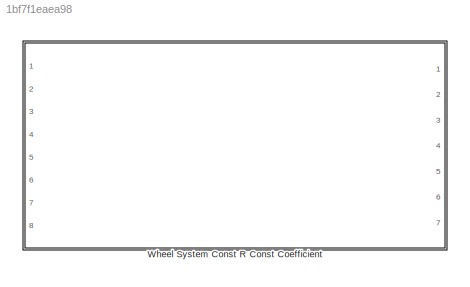
MODEL slx_1bf7f1eaea98
KIND library
CONFIG AbsTol = auto
CONFIG EnableMultiTasking = off
CONFIG FixedStep = auto
CONFIG MaxStep = auto
CONFIG MinStep = auto
CONFIG RelTol = 1e-3
CONFIG SampleTimeConstraint = Unconstrained
CONFIG Solver = VariableStepAuto
CONFIG SolverName = VariableStepAuto
CONFIG StartTime = 0.0
CONFIG StopTime = 10.0
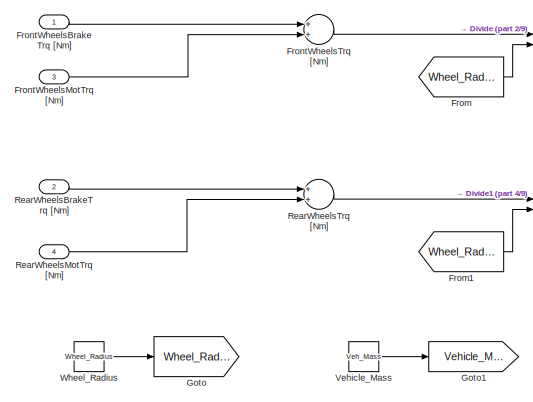
[diagram: Wheel System Const R Const Coefficient - part 1/9, top left region]
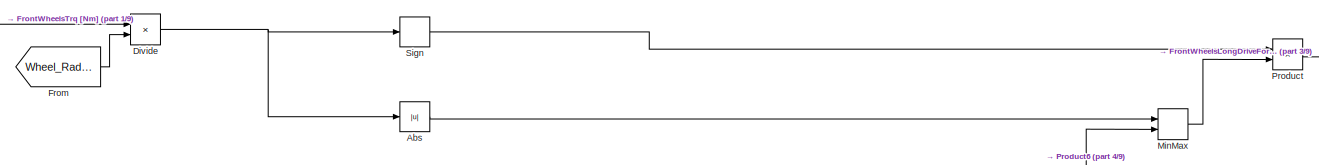
[diagram: Wheel System Const R Const Coefficient - part 2/9, top center region]
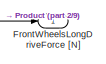
[diagram: Wheel System Const R Const Coefficient - part 3/9, top right region]
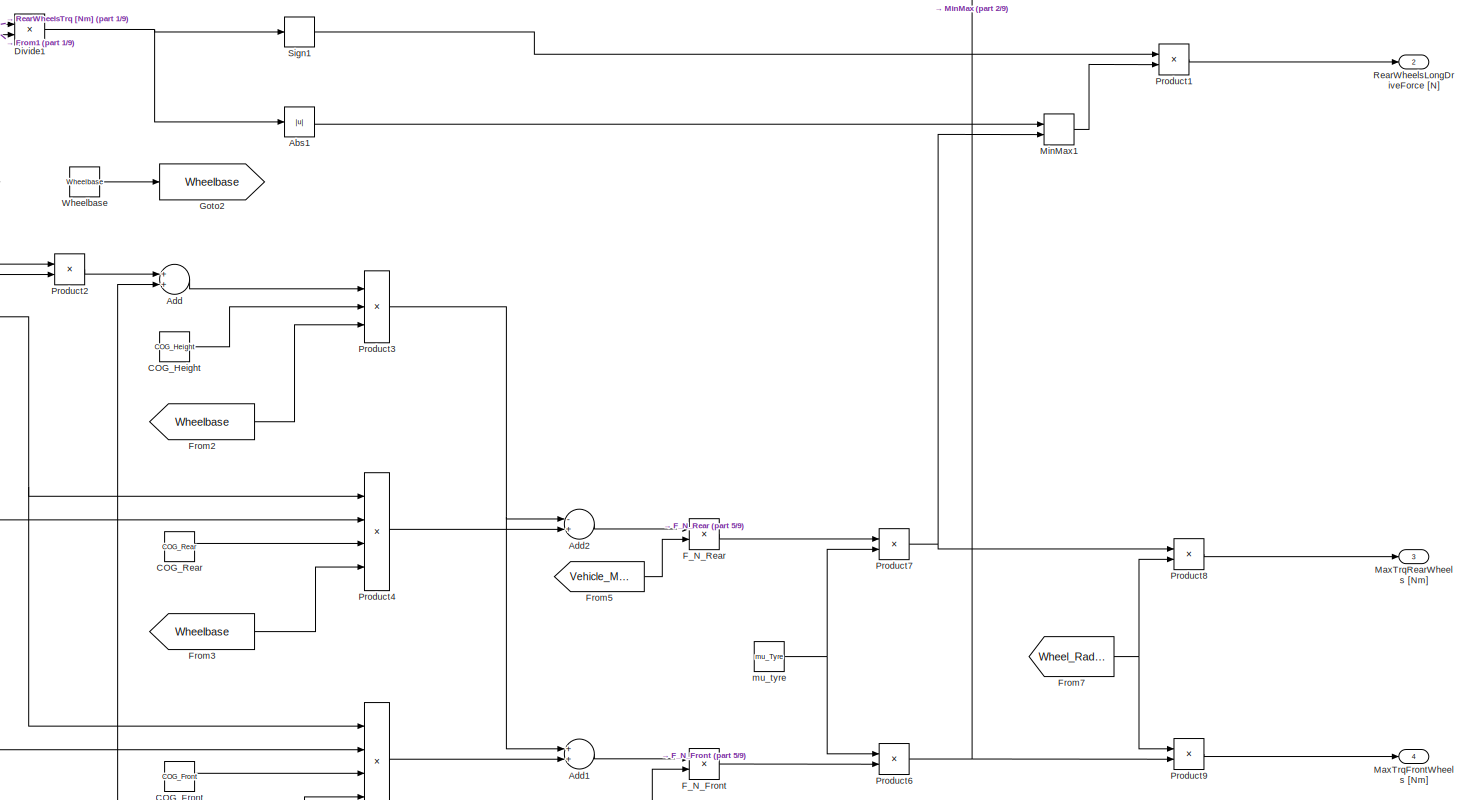
[diagram: Wheel System Const R Const Coefficient - part 4/9, full width, middle band]
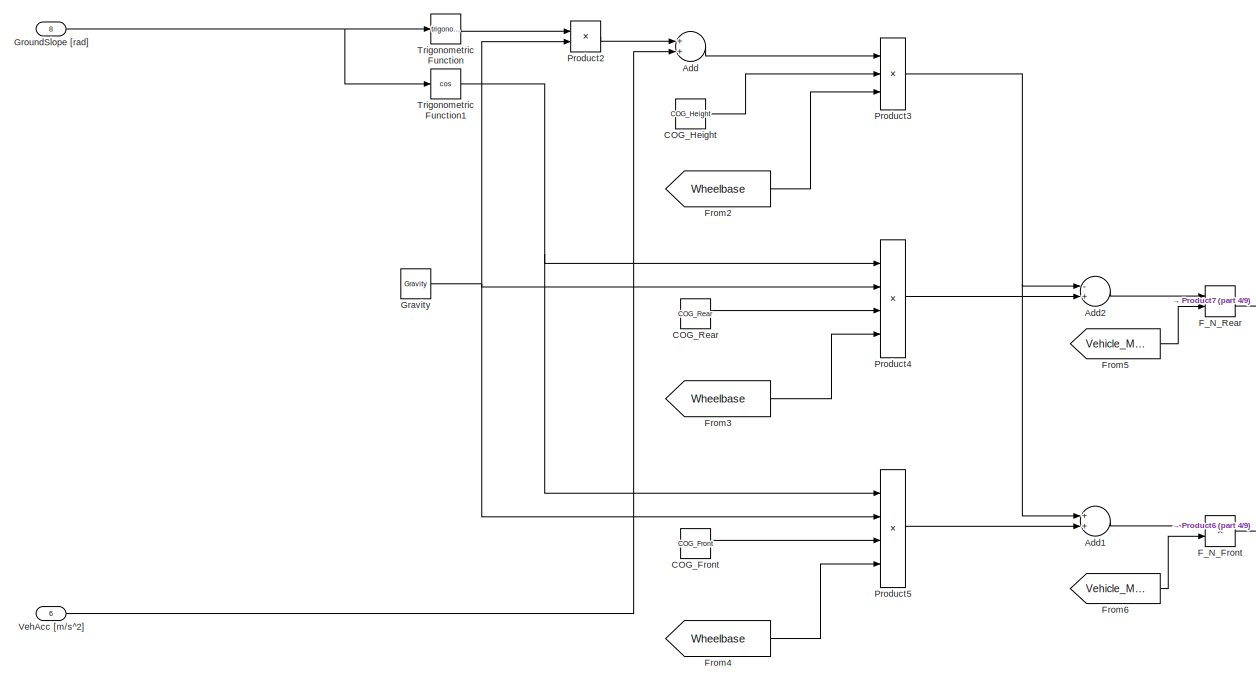
[diagram: Wheel System Const R Const Coefficient - part 5/9, middle left region]
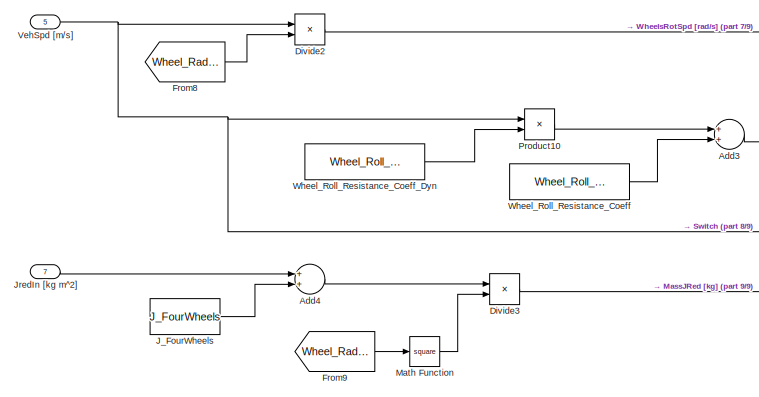
[diagram: Wheel System Const R Const Coefficient - part 6/9, bottom left region]
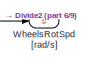
[diagram: Wheel System Const R Const Coefficient - part 7/9, bottom right region]
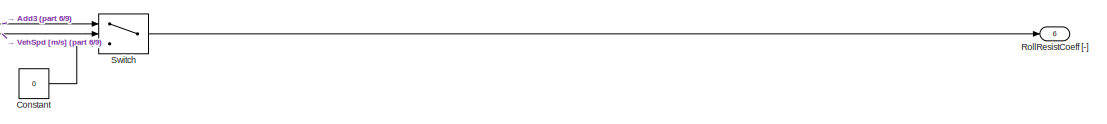
[diagram: Wheel System Const R Const Coefficient - part 8/9, bottom right region]
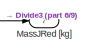
[diagram: Wheel System Const R Const Coefficient - part 9/9, bottom right region]
BLOCK [SubSystem] Wheel System Const R Const Coefficient
  Ports = [8, 7]
  RequestExecContextInheritance = off
BLOCK [Abs] Wheel System Const R Const Coefficient/Abs
  SaturateOnIntegerOverflow = off
BLOCK [Abs] Wheel System Const R Const Coefficient/Abs1
  SaturateOnIntegerOverflow = off
BLOCK [Sum] Wheel System Const R Const Coefficient/Add
  InputSameDT = off
  OutDataTypeStr = Inherit: Inherit via internal rule
  Ports = [2, 1]
  SaturateOnIntegerOverflow = off
BLOCK [Sum] Wheel System Const R Const Coefficient/Add1
  InputSameDT = off
  OutDataTypeStr = Inherit: Inherit via internal rule
  Ports = [2, 1]
  SaturateOnIntegerOverflow = off
BLOCK [Sum] Wheel System Const R Const Coefficient/Add2
  InputSameDT = off
  Inputs = -+
  OutDataTypeStr = Inherit: Inherit via internal rule
  Ports = [2, 1]
  SaturateOnIntegerOverflow = off
BLOCK [Sum] Wheel System Const R Const Coefficient/Add3
  InputSameDT = off
  OutDataTypeStr = Inherit: Inherit via internal rule
  Ports = [2, 1]
  SaturateOnIntegerOverflow = off
BLOCK [Sum] Wheel System Const R Const Coefficient/Add4
  InputSameDT = off
  OutDataTypeStr = Inherit: Inherit via internal rule
  Ports = [2, 1]
  SaturateOnIntegerOverflow = off
BLOCK [Constant] Wheel System Const R Const Coefficient/COG_Front
  Value = COG_Front
BLOCK [Constant] Wheel System Const R Const Coefficient/COG_Height
  Value = COG_Height
BLOCK [Constant] Wheel System Const R Const Coefficient/COG_Rear
  Value = COG_Rear
BLOCK [Constant] Wheel System Const R Const Coefficient/Constant
  Value = 0
BLOCK [Product] Wheel System Const R Const Coefficient/Divide
  InputSameDT = off
  Inputs = */
  OutDataTypeStr = Inherit: Inherit via internal rule
  Ports = [2, 1]
  RndMeth = Floor
  SaturateOnIntegerOverflow = off
BLOCK [Product] Wheel System Const R Const Coefficient/Divide1
  InputSameDT = off
  Inputs = */
  OutDataTypeStr = Inherit: Inherit via internal rule
  Ports = [2, 1]
  RndMeth = Floor
  SaturateOnIntegerOverflow = off
BLOCK [Product] Wheel System Const R Const Coefficient/Divide2
  InputSameDT = off
  Inputs = */
  OutDataTypeStr = Inherit: Inherit via internal rule
  Ports = [2, 1]
  RndMeth = Floor
  SaturateOnIntegerOverflow = off
BLOCK [Product] Wheel System Const R Const Coefficient/Divide3
  InputSameDT = off
  Inputs = */
  OutDataTypeStr = Inherit: Inherit via internal rule
  Ports = [2, 1]
  RndMeth = Floor
  SaturateOnIntegerOverflow = off
BLOCK [Product] Wheel System Const R Const Coefficient/F_N_Front
  InputSameDT = off
  OutDataTypeStr = Inherit: Inherit via internal rule
  Ports = [2, 1]
  RndMeth = Floor
  SaturateOnIntegerOverflow = off
BLOCK [Product] Wheel System Const R Const Coefficient/F_N_Rear
  InputSameDT = off
  OutDataTypeStr = Inherit: Inherit via internal rule
  Ports = [2, 1]
  RndMeth = Floor
  SaturateOnIntegerOverflow = off
BLOCK [From] Wheel System Const R Const Coefficient/From
  GotoTag = Wheel_Radius
BLOCK [From] Wheel System Const R Const Coefficient/From1
  GotoTag = Wheel_Radius
BLOCK [From] Wheel System Const R Const Coefficient/From2
  GotoTag = Wheelbase
BLOCK [From] Wheel System Const R Const Coefficient/From3
  GotoTag = Wheelbase
BLOCK [From] Wheel System Const R Const Coefficient/From4
  GotoTag = Wheelbase
BLOCK [From] Wheel System Const R Const Coefficient/From5
  GotoTag = Vehicle_Mass
BLOCK [From] Wheel System Const R Const Coefficient/From6
  GotoTag = Vehicle_Mass
BLOCK [From] Wheel System Const R Const Coefficient/From7
  GotoTag = Wheel_Radius
BLOCK [From] Wheel System Const R Const Coefficient/From8
  GotoTag = Wheel_Radius
BLOCK [From] Wheel System Const R Const Coefficient/From9
  GotoTag = Wheel_Radius
BLOCK [Inport] Wheel System Const R Const Coefficient/FrontWheelsBrakeTrq [Nm]
  IconDisplay = Port number
  SampleTime = LocalSampleTime
BLOCK [Outport] Wheel System Const R Const Coefficient/FrontWheelsLongDriveForce [N]
  IconDisplay = Port number
  SampleTime = GlobalSampleTime
BLOCK [Inport] Wheel System Const R Const Coefficient/FrontWheelsMotTrq [Nm]
  IconDisplay = Port number
  Port = 3
  SampleTime = LocalSampleTime
BLOCK [Sum] Wheel System Const R Const Coefficient/FrontWheelsTrq [Nm]
  InputSameDT = off
  OutDataTypeStr = Inherit: Inherit via internal rule
  Ports = [2, 1]
  SaturateOnIntegerOverflow = off
BLOCK [Goto] Wheel System Const R Const Coefficient/Goto
  GotoTag = Wheel_Radius
BLOCK [Goto] Wheel System Const R Const Coefficient/Goto1
  GotoTag = Vehicle_Mass
BLOCK [Goto] Wheel System Const R Const Coefficient/Goto2
  GotoTag = Wheelbase
BLOCK [Constant] Wheel System Const R Const Coefficient/Gravity
  Value = Gravity
BLOCK [Inport] Wheel System Const R Const Coefficient/GroundSlope [rad]
  IconDisplay = Port number
  Port = 8
  SampleTime = LocalSampleTime
BLOCK [Constant] Wheel System Const R Const Coefficient/J_FourWheels
  Value = J_FourWheels
BLOCK [Inport] Wheel System Const R Const Coefficient/JredIn [kg m^2]
  IconDisplay = Port number
  Port = 7
  SampleTime = LocalSampleTime
BLOCK [Outport] Wheel System Const R Const Coefficient/MassJRed [kg]
  IconDisplay = Port number
  Port = 7
  SampleTime = GlobalSampleTime
BLOCK [Math] Wheel System Const R Const Coefficient/Math Function
  Operator = square
  Ports = [1, 1]
BLOCK [Outport] Wheel System Const R Const Coefficient/MaxTrqFrontWheels [Nm]
  IconDisplay = Port number
  Port = 4
  SampleTime = GlobalSampleTime
BLOCK [Outport] Wheel System Const R Const Coefficient/MaxTrqRearWheels [Nm]
  IconDisplay = Port number
  Port = 3
  SampleTime = GlobalSampleTime
BLOCK [MinMax] Wheel System Const R Const Coefficient/MinMax
  InputSameDT = off
  Inputs = 2
  Ports = [2, 1]
  SaturateOnIntegerOverflow = off
BLOCK [MinMax] Wheel System Const R Const Coefficient/MinMax1
  InputSameDT = off
  Inputs = 2
  Ports = [2, 1]
  SaturateOnIntegerOverflow = off
BLOCK [Product] Wheel System Const R Const Coefficient/Product
  InputSameDT = off
  OutDataTypeStr = Inherit: Inherit via internal rule
  Ports = [2, 1]
  RndMeth = Floor
  SaturateOnIntegerOverflow = off
BLOCK [Product] Wheel System Const R Const Coefficient/Product1
  InputSameDT = off
  OutDataTypeStr = Inherit: Inherit via internal rule
  Ports = [2, 1]
  RndMeth = Floor
  SaturateOnIntegerOverflow = off
BLOCK [Product] Wheel System Const R Const Coefficient/Product10
  InputSameDT = off
  OutDataTypeStr = Inherit: Inherit via internal rule
  Ports = [2, 1]
  RndMeth = Floor
  SaturateOnIntegerOverflow = off
BLOCK [Product] Wheel System Const R Const Coefficient/Product2
  InputSameDT = off
  OutDataTypeStr = Inherit: Inherit via internal rule
  Ports = [2, 1]
  RndMeth = Floor
  SaturateOnIntegerOverflow = off
BLOCK [Product] Wheel System Const R Const Coefficient/Product3
  InputSameDT = off
  Inputs = **/
  OutDataTypeStr = Inherit: Inherit via internal rule
  Ports = [3, 1]
  RndMeth = Floor
  SaturateOnIntegerOverflow = off
BLOCK [Product] Wheel System Const R Const Coefficient/Product4
  InputSameDT = off
  Inputs = ***/
  OutDataTypeStr = Inherit: Inherit via internal rule
  Ports = [4, 1]
  RndMeth = Floor
  SaturateOnIntegerOverflow = off
BLOCK [Product] Wheel System Const R Const Coefficient/Product5
  InputSameDT = off
  Inputs = ***/
  OutDataTypeStr = Inherit: Inherit via internal rule
  Ports = [4, 1]
  RndMeth = Floor
  SaturateOnIntegerOverflow = off
BLOCK [Product] Wheel System Const R Const Coefficient/Product6
  InputSameDT = off
  OutDataTypeStr = Inherit: Inherit via internal rule
  Ports = [2, 1]
  RndMeth = Floor
  SaturateOnIntegerOverflow = off
BLOCK [Product] Wheel System Const R Const Coefficient/Product7
  InputSameDT = off
  OutDataTypeStr = Inherit: Inherit via internal rule
  Ports = [2, 1]
  RndMeth = Floor
  SaturateOnIntegerOverflow = off
BLOCK [Product] Wheel System Const R Const Coefficient/Product8
  InputSameDT = off
  OutDataTypeStr = Inherit: Inherit via internal rule
  Ports = [2, 1]
  RndMeth = Floor
  SaturateOnIntegerOverflow = off
BLOCK [Product] Wheel System Const R Const Coefficient/Product9
  InputSameDT = off
  OutDataTypeStr = Inherit: Inherit via internal rule
  Ports = [2, 1]
  RndMeth = Floor
  SaturateOnIntegerOverflow = off
BLOCK [Inport] Wheel System Const R Const Coefficient/RearWheelsBrakeTrq [Nm]
  IconDisplay = Port number
  Port = 2
  SampleTime = LocalSampleTime
BLOCK [Outport] Wheel System Const R Const Coefficient/RearWheelsLongDriveForce [N]
  IconDisplay = Port number
  Port = 2
  SampleTime = GlobalSampleTime
BLOCK [Inport] Wheel System Const R Const Coefficient/RearWheelsMotTrq [Nm]
  IconDisplay = Port number
  Port = 4
  SampleTime = LocalSampleTime
BLOCK [Sum] Wheel System Const R Const Coefficient/RearWheelsTrq [Nm]
  InputSameDT = off
  OutDataTypeStr = Inherit: Inherit via internal rule
  Ports = [2, 1]
  SaturateOnIntegerOverflow = off
BLOCK [Outport] Wheel System Const R Const Coefficient/RollResistCoeff [-]
  IconDisplay = Port number
  Port = 6
  SampleTime = GlobalSampleTime
BLOCK [Signum] Wheel System Const R Const Coefficient/Sign
BLOCK [Signum] Wheel System Const R Const Coefficient/Sign1
BLOCK [Switch] Wheel System Const R Const Coefficient/Switch
  Criteria = u2 ~= 0
  InputSameDT = off
  SaturateOnIntegerOverflow = off
BLOCK [Trigonometry] Wheel System Const R Const Coefficient/Trigonometric Function
  Ports = [1, 1]
BLOCK [Trigonometry] Wheel System Const R Const Coefficient/Trigonometric Function1
  Operator = cos
  Ports = [1, 1]
BLOCK [Inport] Wheel System Const R Const Coefficient/VehAcc [m//s^2]
  IconDisplay = Port number
  Port = 6
  SampleTime = LocalSampleTime
BLOCK [Inport] Wheel System Const R Const Coefficient/VehSpd [m//s]
  IconDisplay = Port number
  Port = 5
  SampleTime = LocalSampleTime
BLOCK [Constant] Wheel System Const R Const Coefficient/Vehicle_Mass
  Value = Veh_Mass
BLOCK [Constant] Wheel System Const R Const Coefficient/Wheel_Radius
  Value = Wheel_Radius
BLOCK [Constant] Wheel System Const R Const Coefficient/Wheel_Roll_Resistance_Coeff
  Value = Wheel_Roll_Resistance
BLOCK [Constant] Wheel System Const R Const Coefficient/Wheel_Roll_Resistance_Coeff_Dyn
  Value = Wheel_Roll_Resistance_Dyn
BLOCK [Constant] Wheel System Const R Const Coefficient/Wheelbase
  Value = Wheelbase
BLOCK [Outport] Wheel System Const R Const Coefficient/WheelsRotSpd [rad//s]
  IconDisplay = Port number
  Port = 5
  SampleTime = GlobalSampleTime
BLOCK [Constant] Wheel System Const R Const Coefficient/mu_tyre
  Value = mu_Tyre
LINE Wheel System Const R Const Coefficient/Abs1:1 -> Wheel System Const R Const Coefficient/MinMax1:1
LINE Wheel System Const R Const Coefficient/Abs:1 -> Wheel System Const R Const Coefficient/MinMax:1
LINE Wheel System Const R Const Coefficient/Add1:1 -> Wheel System Const R Const Coefficient/F_N_Front:1
LINE Wheel System Const R Const Coefficient/Add2:1 -> Wheel System Const R Const Coefficient/F_N_Rear:1
LINE Wheel System Const R Const Coefficient/Add3:1 -> Wheel System Const R Const Coefficient/Switch:1
LINE Wheel System Const R Const Coefficient/Add4:1 -> Wheel System Const R Const Coefficient/Divide3:1
LINE Wheel System Const R Const Coefficient/Add:1 -> Wheel System Const R Const Coefficient/Product3:1
LINE Wheel System Const R Const Coefficient/COG_Front:1 -> Wheel System Const R Const Coefficient/Product5:3
LINE Wheel System Const R Const Coefficient/COG_Height:1 -> Wheel System Const R Const Coefficient/Product3:2
LINE Wheel System Const R Const Coefficient/COG_Rear:1 -> Wheel System Const R Const Coefficient/Product4:3
LINE Wheel System Const R Const Coefficient/Constant:1 -> Wheel System Const R Const Coefficient/Switch:3
NET Wheel System Const R Const Coefficient/Divide1:1 -> Wheel System Const R Const Coefficient/Abs1:1, Wheel System Const R Const Coefficient/Sign1:1
LINE Wheel System Const R Const Coefficient/Divide2:1 -> Wheel System Const R Const Coefficient/WheelsRotSpd [rad//s]:1
LINE Wheel System Const R Const Coefficient/Divide3:1 -> Wheel System Const R Const Coefficient/MassJRed [kg]:1
NET Wheel System Const R Const Coefficient/Divide:1 -> Wheel System Const R Const Coefficient/Abs:1, Wheel System Const R Const Coefficient/Sign:1
LINE Wheel System Const R Const Coefficient/F_N_Front:1 -> Wheel System Const R Const Coefficient/Product6:2
LINE Wheel System Const R Const Coefficient/F_N_Rear:1 -> Wheel System Const R Const Coefficient/Product7:1
LINE Wheel System Const R Const Coefficient/From1:1 -> Wheel System Const R Const Coefficient/Divide1:2
LINE Wheel System Const R Const Coefficient/From2:1 -> Wheel System Const R Const Coefficient/Product3:3
LINE Wheel System Const R Const Coefficient/From3:1 -> Wheel System Const R Const Coefficient/Product4:4
LINE Wheel System Const R Const Coefficient/From4:1 -> Wheel System Const R Const Coefficient/Product5:4
LINE Wheel System Const R Const Coefficient/From5:1 -> Wheel System Const R Const Coefficient/F_N_Rear:2
LINE Wheel System Const R Const Coefficient/From6:1 -> Wheel System Const R Const Coefficient/F_N_Front:2
NET Wheel System Const R Const Coefficient/From7:1 -> Wheel System Const R Const Coefficient/Product8:2, Wheel System Const R Const Coefficient/Product9:1
LINE Wheel System Const R Const Coefficient/From8:1 -> Wheel System Const R Const Coefficient/Divide2:2
LINE Wheel System Const R Const Coefficient/From9:1 -> Wheel System Const R Const Coefficient/Math Function:1
LINE Wheel System Const R Const Coefficient/From:1 -> Wheel System Const R Const Coefficient/Divide:2
LINE Wheel System Const R Const Coefficient/FrontWheelsBrakeTrq [Nm]:1 -> Wheel System Const R Const Coefficient/FrontWheelsTrq [Nm]:1
LINE Wheel System Const R Const Coefficient/FrontWheelsMotTrq [Nm]:1 -> Wheel System Const R Const Coefficient/FrontWheelsTrq [Nm]:2
LINE Wheel System Const R Const Coefficient/FrontWheelsTrq [Nm]:1 -> Wheel System Const R Const Coefficient/Divide:1
NET Wheel System Const R Const Coefficient/Gravity:1 -> Wheel System Const R Const Coefficient/Product2:2, Wheel System Const R Const Coefficient/Product4:2, Wheel System Const R Const Coefficient/Product5:2
NET Wheel System Const R Const Coefficient/GroundSlope [rad]:1 -> Wheel System Const R Const Coefficient/Trigonometric Function1:1, Wheel System Const R Const Coefficient/Trigonometric Function:1
LINE Wheel System Const R Const Coefficient/J_FourWheels:1 -> Wheel System Const R Const Coefficient/Add4:2
LINE Wheel System Const R Const Coefficient/JredIn [kg m^2]:1 -> Wheel System Const R Const Coefficient/Add4:1
LINE Wheel System Const R Const Coefficient/Math Function:1 -> Wheel System Const R Const Coefficient/Divide3:2
LINE Wheel System Const R Const Coefficient/MinMax1:1 -> Wheel System Const R Const Coefficient/Product1:2
LINE Wheel System Const R Const Coefficient/MinMax:1 -> Wheel System Const R Const Coefficient/Product:2
LINE Wheel System Const R Const Coefficient/Product10:1 -> Wheel System Const R Const Coefficient/Add3:1
LINE Wheel System Const R Const Coefficient/Product1:1 -> Wheel System Const R Const Coefficient/RearWheelsLongDriveForce [N]:1
LINE Wheel System Const R Const Coefficient/Product2:1 -> Wheel System Const R Const Coefficient/Add:1
NET Wheel System Const R Const Coefficient/Product3:1 -> Wheel System Const R Const Coefficient/Add1:1, Wheel System Const R Const Coefficient/Add2:1
LINE Wheel System Const R Const Coefficient/Product4:1 -> Wheel System Const R Const Coefficient/Add2:2
LINE Wheel System Const R Const Coefficient/Product5:1 -> Wheel System Const R Const Coefficient/Add1:2
NET Wheel System Const R Const Coefficient/Product6:1 -> Wheel System Const R Const Coefficient/MinMax:2, Wheel System Const R Const Coefficient/Product9:2
NET Wheel System Const R Const Coefficient/Product7:1 -> Wheel System Const R Const Coefficient/MinMax1:2, Wheel System Const R Const Coefficient/Product8:1
LINE Wheel System Const R Const Coefficient/Product8:1 -> Wheel System Const R Const Coefficient/MaxTrqRearWheels [Nm]:1
LINE Wheel System Const R Const Coefficient/Product9:1 -> Wheel System Const R Const Coefficient/MaxTrqFrontWheels [Nm]:1
LINE Wheel System Const R Const Coefficient/Product:1 -> Wheel System Const R Const Coefficient/FrontWheelsLongDriveForce [N]:1
LINE Wheel System Const R Const Coefficient/RearWheelsBrakeTrq [Nm]:1 -> Wheel System Const R Const Coefficient/RearWheelsTrq [Nm]:1
LINE Wheel System Const R Const Coefficient/RearWheelsMotTrq [Nm]:1 -> Wheel System Const R Const Coefficient/RearWheelsTrq [Nm]:2
LINE Wheel System Const R Const Coefficient/RearWheelsTrq [Nm]:1 -> Wheel System Const R Const Coefficient/Divide1:1
LINE Wheel System Const R Const Coefficient/Sign1:1 -> Wheel System Const R Const Coefficient/Product1:1
LINE Wheel System Const R Const Coefficient/Sign:1 -> Wheel System Const R Const Coefficient/Product:1
LINE Wheel System Const R Const Coefficient/Switch:1 -> Wheel System Const R Const Coefficient/RollResistCoeff [-]:1
NET Wheel System Const R Const Coefficient/Trigonometric Function1:1 -> Wheel System Const R Const Coefficient/Product4:1, Wheel System Const R Const Coefficient/Product5:1
LINE Wheel System Const R Const Coefficient/Trigonometric Function:1 -> Wheel System Const R Const Coefficient/Product2:1
LINE Wheel System Const R Const Coefficient/VehAcc [m//s^2]:1 -> Wheel System Const R Const Coefficient/Add:2
NET Wheel System Const R Const Coefficient/VehSpd [m//s]:1 -> Wheel System Const R Const Coefficient/Divide2:1, Wheel System Const R Const Coefficient/Product10:1, Wheel System Const R Const Coefficient/Switch:2
LINE Wheel System Const R Const Coefficient/Vehicle_Mass:1 -> Wheel System Const R Const Coefficient/Goto1:1
LINE Wheel System Const R Const Coefficient/Wheel_Radius:1 -> Wheel System Const R Const Coefficient/Goto:1
LINE Wheel System Const R Const Coefficient/Wheel_Roll_Resistance_Coeff:1 -> Wheel System Const R Const Coefficient/Add3:2
LINE Wheel System Const R Const Coefficient/Wheel_Roll_Resistance_Coeff_Dyn:1 -> Wheel System Const R Const Coefficient/Product10:2
LINE Wheel System Const R Const Coefficient/Wheelbase:1 -> Wheel System Const R Const Coefficient/Goto2:1
NET Wheel System Const R Const Coefficient/mu_tyre:1 -> Wheel System Const R Const Coefficient/Product6:1, Wheel System Const R Const Coefficient/Product7:2
note: NET lines group one-source signal fan-out (src -> all destinations, sorted); 1:1 wires keep LINE
